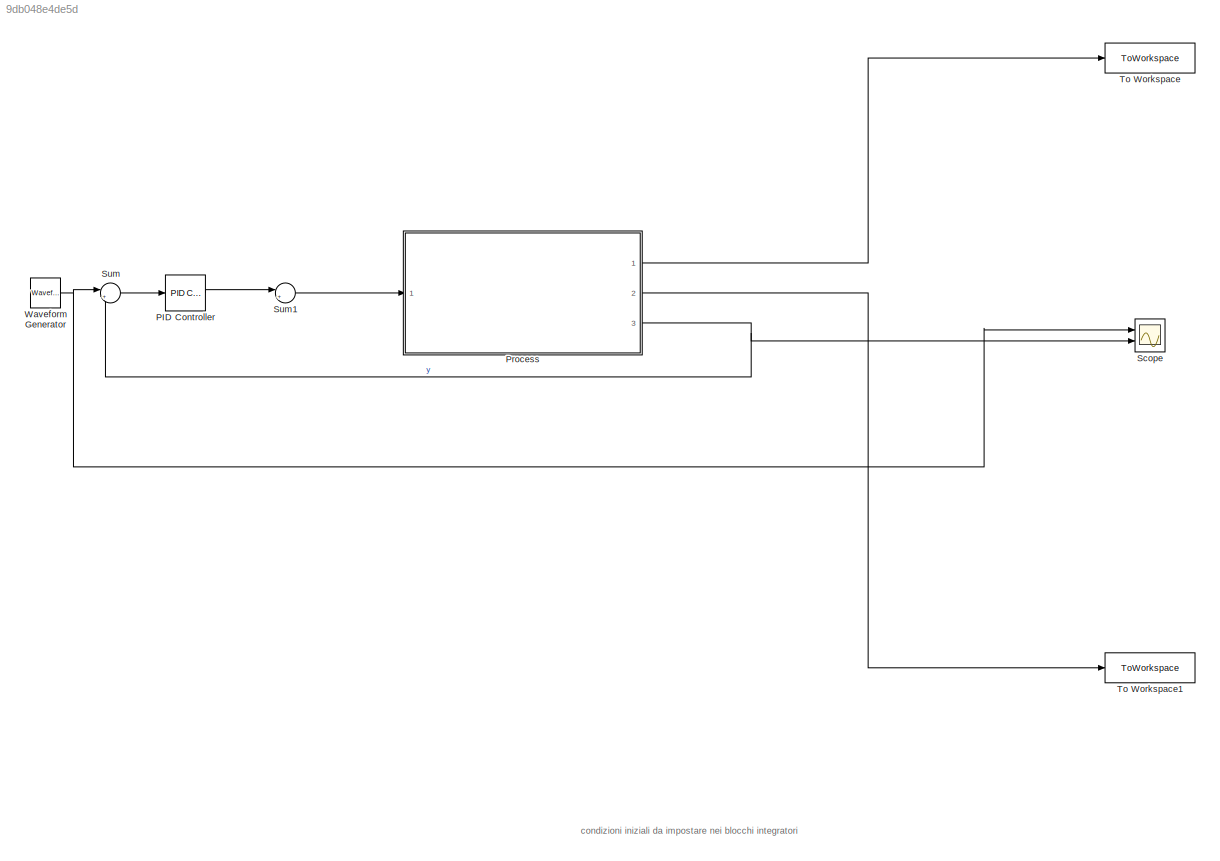
MODEL slx_9db048e4de5d
KIND model
CONFIG AbsTol = auto
CONFIG EnableMultiTasking = off
CONFIG FixedStep = auto
CONFIG MaxStep = auto
CONFIG MinStep = auto
CONFIG RelTol = 1e-3
CONFIG SampleTimeConstraint = Unconstrained
CONFIG SolverName = VariableStepAuto
CONFIG StartTime = 0.0
CONFIG StopTime = 10.0
BLOCK [Reference] PID Controller  REF=slpidlib/PID Controller
  Ports = [1, 1]
  SourceBlock = slpidlib/PID Controller
  SourceProductBaseCode = SL
  SourceType = PID 1dof
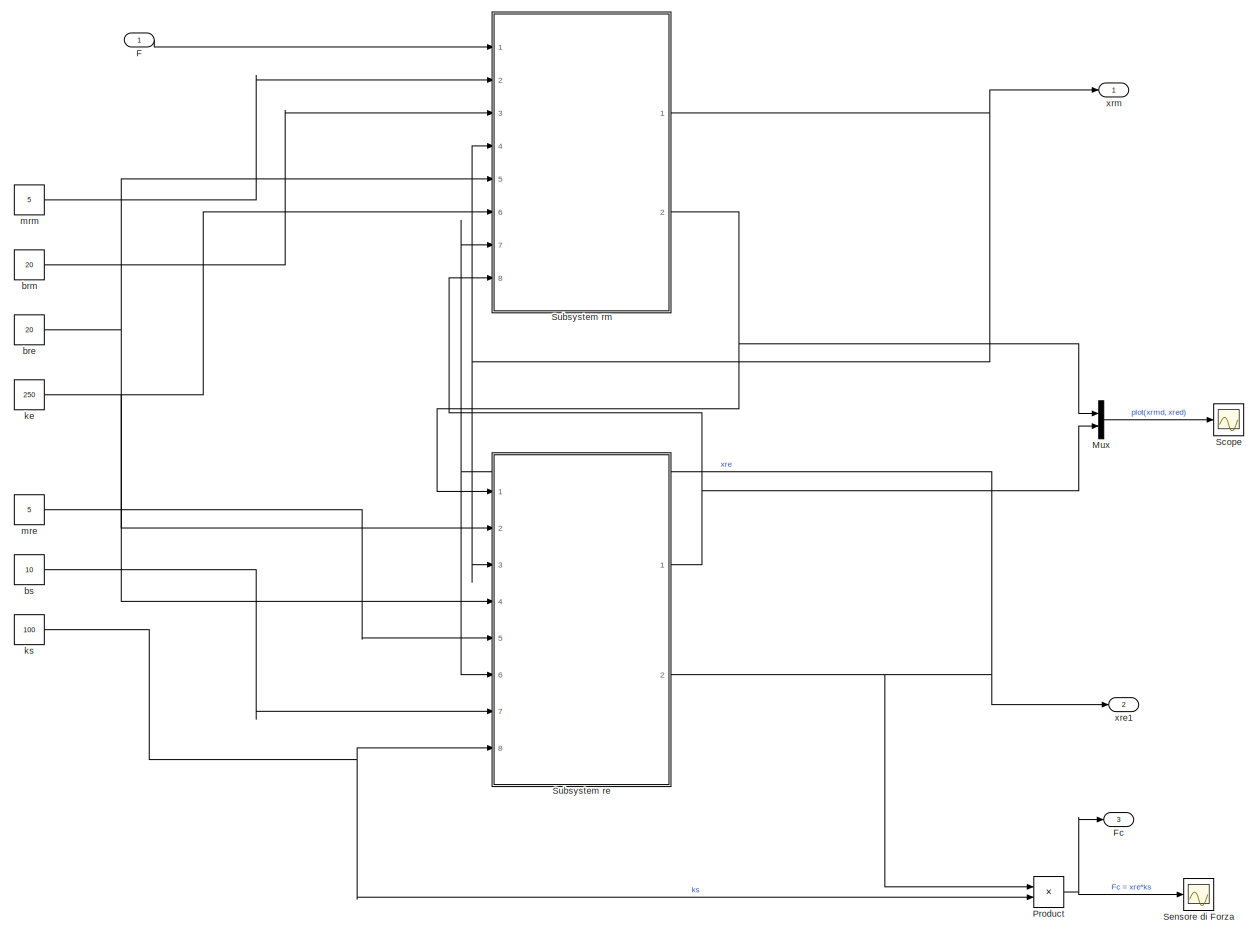
[diagram: Process - part 1/1, most of the canvas]
BLOCK [SubSystem] Process
  Ports = [1, 3]
  RequestExecContextInheritance = off
BLOCK [Inport] Process/F
BLOCK [Outport] Process/Fc
  Port = 3
BLOCK [Mux] Process/Mux
  DisplayOption = bar
  Inputs = 2
  Ports = [2, 1]
BLOCK [Product] Process/Product
  Ports = [2, 1]
BLOCK [Scope] Process/Scope
  Floating = off
  NumInputPorts = 1
  Ports = [1]
  ScopeSpecificationString = Simulink.scopes.TimeScopeBlockCfg('CurrentConfiguration', extmgr.ConfigurationSet(extmgr.Configuration('Core','General UI',true),extmgr.Configuration('Core','Source UI',true),extmgr.Configuration('Sources','WiredSimulink',true),extmgr.Configuration('Visuals','Time Domain',true,'SerializedDisplays',{struct('MinYLimReal','-0.00539','MaxYLimReal','0.02252','YLabelReal','','MinYLimMag','0.00000','MaxY...<+1357ch>
BLOCK [Scope] Process/Sensore di Forza
  Floating = off
  NumInputPorts = 1
  Ports = [1]
  ScopeSpecificationString = Simulink.scopes.TimeScopeBlockCfg('CurrentConfiguration', extmgr.ConfigurationSet(extmgr.Configuration('Core','General UI',true),extmgr.Configuration('Core','Source UI',true),extmgr.Configuration('Sources','WiredSimulink',true,'DataLoggingVariableName','ScopeData1'),extmgr.Configuration('Visuals','Time Domain',true),extmgr.Configuration('Tools','Plot Navigation',true),extmgr.Configuration('Tools',...<+40ch>
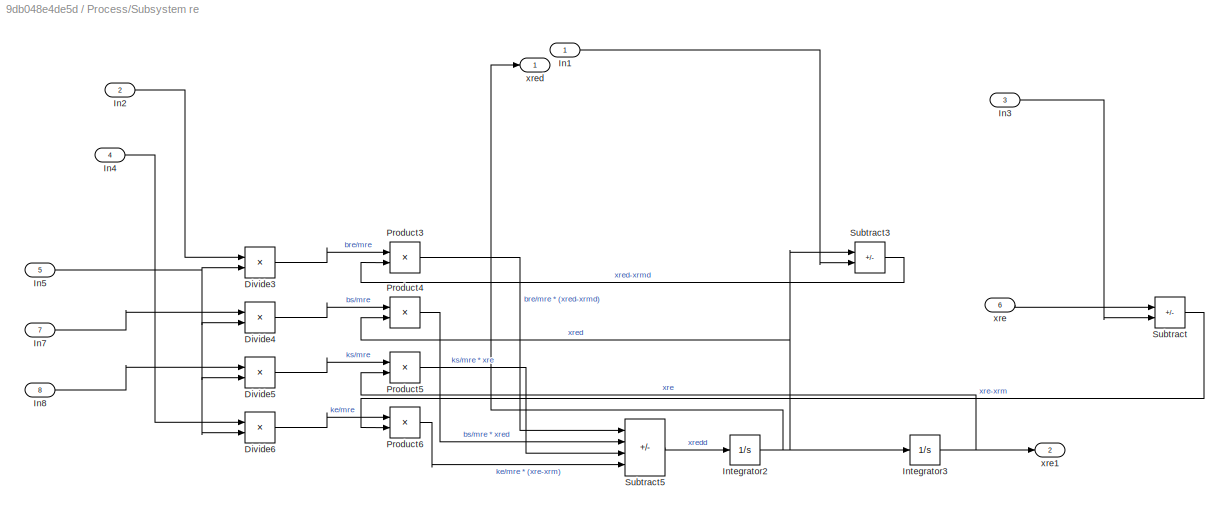
BLOCK [SubSystem] Process/Subsystem re
  Ports = [8, 2]
  RequestExecContextInheritance = off
BLOCK [Product] Process/Subsystem re/Divide3
  Inputs = */
  Ports = [2, 1]
BLOCK [Product] Process/Subsystem re/Divide4
  Inputs = */
  Ports = [2, 1]
BLOCK [Product] Process/Subsystem re/Divide5
  Inputs = */
  Ports = [2, 1]
BLOCK [Product] Process/Subsystem re/Divide6
  Inputs = */
  Ports = [2, 1]
BLOCK [Inport] Process/Subsystem re/In1
BLOCK [Inport] Process/Subsystem re/In2
  Port = 2
BLOCK [Inport] Process/Subsystem re/In3
  Port = 3
BLOCK [Inport] Process/Subsystem re/In4
  Port = 4
BLOCK [Inport] Process/Subsystem re/In5
  Port = 5
BLOCK [Inport] Process/Subsystem re/In7
  Port = 7
BLOCK [Inport] Process/Subsystem re/In8
  Port = 8
BLOCK [Integrator] Process/Subsystem re/Integrator2
  Ports = [1, 1]
BLOCK [Integrator] Process/Subsystem re/Integrator3
  Ports = [1, 1]
BLOCK [Product] Process/Subsystem re/Product3
  Ports = [2, 1]
BLOCK [Product] Process/Subsystem re/Product4
  Ports = [2, 1]
BLOCK [Product] Process/Subsystem re/Product5
  Ports = [2, 1]
BLOCK [Product] Process/Subsystem re/Product6
  Ports = [2, 1]
BLOCK [Sum] Process/Subsystem re/Subtract
  IconShape = rectangular
  Inputs = +-
  Ports = [2, 1]
BLOCK [Sum] Process/Subsystem re/Subtract3
  IconShape = rectangular
  Inputs = +-
  Ports = [2, 1]
BLOCK [Sum] Process/Subsystem re/Subtract5
  IconShape = rectangular
  Inputs = ----
  Ports = [4, 1]
BLOCK [Inport] Process/Subsystem re/xre
  Port = 6
BLOCK [Outport] Process/Subsystem re/xre1
  Port = 2
BLOCK [Outport] Process/Subsystem re/xred
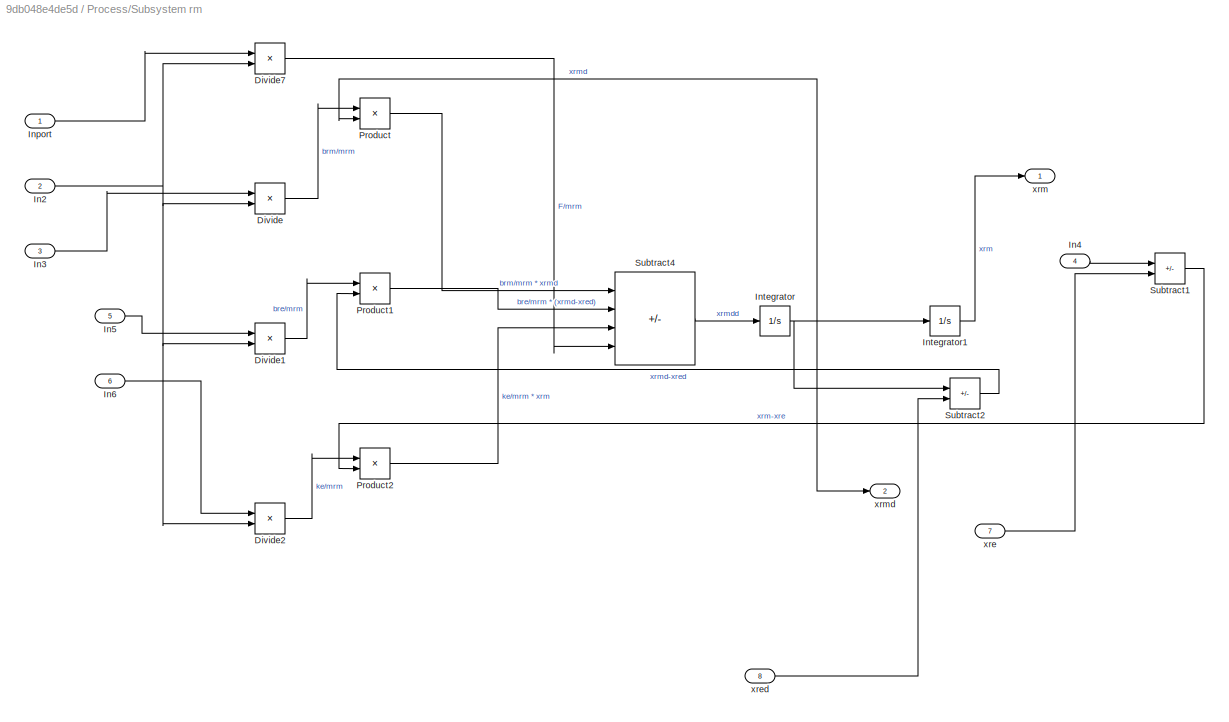
BLOCK [SubSystem] Process/Subsystem rm
  Ports = [8, 2]
  RequestExecContextInheritance = off
BLOCK [Product] Process/Subsystem rm/Divide
  Inputs = */
  Ports = [2, 1]
BLOCK [Product] Process/Subsystem rm/Divide1
  Inputs = */
  Ports = [2, 1]
BLOCK [Product] Process/Subsystem rm/Divide2
  Inputs = */
  Ports = [2, 1]
BLOCK [Product] Process/Subsystem rm/Divide7
  Inputs = */
  Ports = [2, 1]
BLOCK [Inport] Process/Subsystem rm/In2
  Port = 2
BLOCK [Inport] Process/Subsystem rm/In3
  Port = 3
BLOCK [Inport] Process/Subsystem rm/In4
  Port = 4
BLOCK [Inport] Process/Subsystem rm/In5
  Port = 5
BLOCK [Inport] Process/Subsystem rm/In6
  Port = 6
BLOCK [Inport] Process/Subsystem rm/Inport
BLOCK [Integrator] Process/Subsystem rm/Integrator
  Ports = [1, 1]
BLOCK [Integrator] Process/Subsystem rm/Integrator1
  Ports = [1, 1]
BLOCK [Product] Process/Subsystem rm/Product
  Ports = [2, 1]
BLOCK [Product] Process/Subsystem rm/Product1
  Ports = [2, 1]
BLOCK [Product] Process/Subsystem rm/Product2
  Ports = [2, 1]
BLOCK [Sum] Process/Subsystem rm/Subtract1
  IconShape = rectangular
  Inputs = +-
  Ports = [2, 1]
BLOCK [Sum] Process/Subsystem rm/Subtract2
  IconShape = rectangular
  Inputs = +-
  Ports = [2, 1]
BLOCK [Sum] Process/Subsystem rm/Subtract4
  IconShape = rectangular
  Inputs = ---+
  Ports = [4, 1]
BLOCK [Inport] Process/Subsystem rm/xre
  Port = 7
BLOCK [Inport] Process/Subsystem rm/xred
  Port = 8
BLOCK [Outport] Process/Subsystem rm/xrm
BLOCK [Outport] Process/Subsystem rm/xrmd
  Port = 2
BLOCK [Constant] Process/bre
  Value = 20
BLOCK [Constant] Process/brm
  Value = 20
BLOCK [Constant] Process/bs
  Value = 10
BLOCK [Constant] Process/ke
  Value = 250
BLOCK [Constant] Process/ks
  Value = 100
BLOCK [Constant] Process/mre
  Value = 5
BLOCK [Constant] Process/mrm
  Value = 5
BLOCK [Outport] Process/xre1
  Port = 2
BLOCK [Outport] Process/xrm
BLOCK [Scope] Scope
  Floating = off
  NumInputPorts = 2
  Ports = [2]
  ScopeSpecificationString = Simulink.scopes.TimeScopeBlockCfg('CurrentConfiguration', extmgr.ConfigurationSet(extmgr.Configuration('Core','General UI',true),extmgr.Configuration('Core','Source UI',true),extmgr.Configuration('Sources','WiredSimulink',true,'DataLoggingVariableName','ScopeData1'),extmgr.Configuration('Visuals','Time Domain',true,'SerializedDisplays',{struct('MinYLimReal','-1.34336','MaxYLimReal','1.3441','YLabe...<+1377ch>
BLOCK [Sum] Sum
  Inputs = |+-
  Ports = [2, 1]
BLOCK [Sum] Sum1
  Inputs = |++
  Ports = [2, 1]
BLOCK [ToWorkspace] To Workspace
  FixptAsFi = on
  MaxDataPoints = inf
  Ports = [1]
  SampleTime = -1
  SaveFormat = Timeseries
  VariableName = xrm
BLOCK [ToWorkspace] To Workspace1
  FixptAsFi = on
  MaxDataPoints = inf
  Ports = [1]
  SampleTime = -1
  SaveFormat = Timeseries
  VariableName = xre
BLOCK [Reference] Waveform Generator  REF=simulink/Sources/Waveform
Generator
  Ports = [0, 1]
  SourceBlock = simulink/Sources/Waveform\nGenerator
  SourceProductBaseCode = SL
  SourceType = WaveformGenerator
ANNOTATION (root): condizioni iniziali da impostare nei blocchi integratori
LINE PID Controller:1 -> Sum1:1
LINE Process/F:1 -> Process/Subsystem rm:1
LINE Process/Mux:1 -> Process/Scope:1
NET Process/Product:1 -> Process/Fc:1, Process/Sensore di Forza:1
LINE Process/Subsystem re/Divide3:1 -> Process/Subsystem re/Product3:1
LINE Process/Subsystem re/Divide4:1 -> Process/Subsystem re/Product4:1
LINE Process/Subsystem re/Divide5:1 -> Process/Subsystem re/Product5:1
LINE Process/Subsystem re/Divide6:1 -> Process/Subsystem re/Product6:1
LINE Process/Subsystem re/In1:1 -> Process/Subsystem re/Subtract3:2
LINE Process/Subsystem re/In2:1 -> Process/Subsystem re/Divide3:1
LINE Process/Subsystem re/In3:1 -> Process/Subsystem re/Subtract:2
LINE Process/Subsystem re/In4:1 -> Process/Subsystem re/Divide6:1
NET Process/Subsystem re/In5:1 -> Process/Subsystem re/Divide3:2, Process/Subsystem re/Divide4:2, Process/Subsystem re/Divide5:2, Process/Subsystem re/Divide6:2
LINE Process/Subsystem re/In7:1 -> Process/Subsystem re/Divide4:1
LINE Process/Subsystem re/In8:1 -> Process/Subsystem re/Divide5:1
NET Process/Subsystem re/Integrator2:1 -> Process/Subsystem re/Integrator3:1, Process/Subsystem re/Product4:2, Process/Subsystem re/Subtract3:1, Process/Subsystem re/xred:1
NET Process/Subsystem re/Integrator3:1 -> Process/Subsystem re/Product5:2, Process/Subsystem re/xre1:1
LINE Process/Subsystem re/Product3:1 -> Process/Subsystem re/Subtract5:1
LINE Process/Subsystem re/Product4:1 -> Process/Subsystem re/Subtract5:2
LINE Process/Subsystem re/Product5:1 -> Process/Subsystem re/Subtract5:3
LINE Process/Subsystem re/Product6:1 -> Process/Subsystem re/Subtract5:4
LINE Process/Subsystem re/Subtract3:1 -> Process/Subsystem re/Product3:2
LINE Process/Subsystem re/Subtract5:1 -> Process/Subsystem re/Integrator2:1
LINE Process/Subsystem re/Subtract:1 -> Process/Subsystem re/Product6:2
LINE Process/Subsystem re/xre:1 -> Process/Subsystem re/Subtract:1
NET Process/Subsystem re:1 -> Process/Mux:2, Process/Subsystem rm:8
NET Process/Subsystem re:2 -> Process/Product:1, Process/Subsystem re:6, Process/Subsystem rm:7, Process/xre1:1
LINE Process/Subsystem rm/Divide1:1 -> Process/Subsystem rm/Product1:1
LINE Process/Subsystem rm/Divide2:1 -> Process/Subsystem rm/Product2:1
LINE Process/Subsystem rm/Divide7:1 -> Process/Subsystem rm/Subtract4:4
LINE Process/Subsystem rm/Divide:1 -> Process/Subsystem rm/Product:1
NET Process/Subsystem rm/In2:1 -> Process/Subsystem rm/Divide1:2, Process/Subsystem rm/Divide2:2, Process/Subsystem rm/Divide7:2, Process/Subsystem rm/Divide:2
LINE Process/Subsystem rm/In3:1 -> Process/Subsystem rm/Divide:1
LINE Process/Subsystem rm/In4:1 -> Process/Subsystem rm/Subtract1:1
LINE Process/Subsystem rm/In5:1 -> Process/Subsystem rm/Divide1:1
LINE Process/Subsystem rm/In6:1 -> Process/Subsystem rm/Divide2:1
LINE Process/Subsystem rm/Inport:1 -> Process/Subsystem rm/Divide7:1
LINE Process/Subsystem rm/Integrator1:1 -> Process/Subsystem rm/xrm:1
NET Process/Subsystem rm/Integrator:1 -> Process/Subsystem rm/Integrator1:1, Process/Subsystem rm/Product:2, Process/Subsystem rm/Subtract2:1, Process/Subsystem rm/xrmd:1
LINE Process/Subsystem rm/Product1:1 -> Process/Subsystem rm/Subtract4:2
LINE Process/Subsystem rm/Product2:1 -> Process/Subsystem rm/Subtract4:3
LINE Process/Subsystem rm/Product:1 -> Process/Subsystem rm/Subtract4:1
LINE Process/Subsystem rm/Subtract1:1 -> Process/Subsystem rm/Product2:2
LINE Process/Subsystem rm/Subtract2:1 -> Process/Subsystem rm/Product1:2
LINE Process/Subsystem rm/Subtract4:1 -> Process/Subsystem rm/Integrator:1
LINE Process/Subsystem rm/xre:1 -> Process/Subsystem rm/Subtract1:2
LINE Process/Subsystem rm/xred:1 -> Process/Subsystem rm/Subtract2:2
NET Process/Subsystem rm:1 -> Process/Subsystem re:3, Process/Subsystem rm:4, Process/xrm:1
NET Process/Subsystem rm:2 -> Process/Mux:1, Process/Subsystem re:1
NET Process/bre:1 -> Process/Subsystem re:2, Process/Subsystem rm:5
LINE Process/brm:1 -> Process/Subsystem rm:3
LINE Process/bs:1 -> Process/Subsystem re:7
NET Process/ke:1 -> Process/Subsystem re:4, Process/Subsystem rm:6
NET Process/ks:1 -> Process/Product:2, Process/Subsystem re:8
LINE Process/mre:1 -> Process/Subsystem re:5
LINE Process/mrm:1 -> Process/Subsystem rm:2
LINE Process:1 -> To Workspace:1
LINE Process:2 -> To Workspace1:1
NET Process:3 -> Scope:2, Sum:2
LINE Sum1:1 -> Process:1
LINE Sum:1 -> PID Controller:1
NET Waveform Generator:1 -> Scope:1, Sum:1
note: NET lines group one-source signal fan-out (src -> all destinations, sorted); 1:1 wires keep LINE
